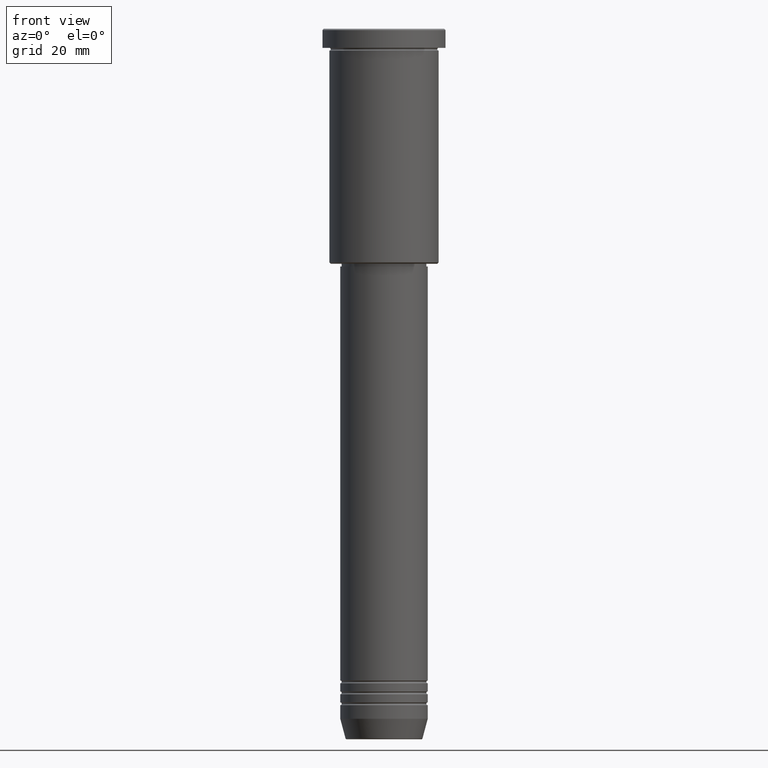
[diagram: clean part render]
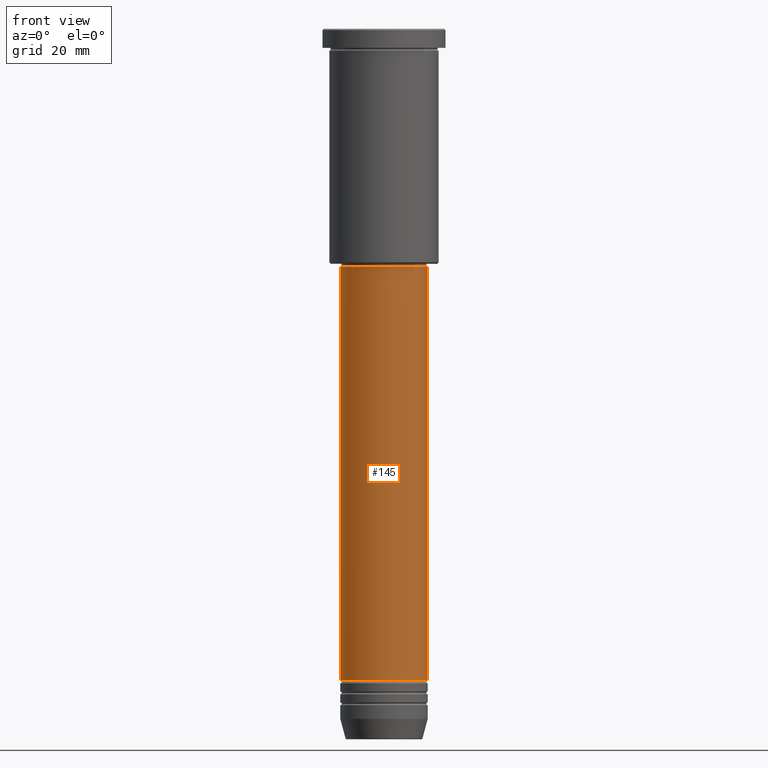
[diagram: same view with one face highlighted and labeled with its STEP entity id]
A machine part, front view. The second image highlights one B-rep face of the part: STEP entity #145.
In plain terms, the highlighted cylindrical surface (partial cylindrical patch) has radius 16 mm, axis along (-0, -0, 1).
Its self-contained STEP definition (entity closure, byte-faithful):
#52 = CIRCLE ( 'NONE', #85, 16.00000000000000000 ) ;
#85 = AXIS2_PLACEMENT_3D ( 'NONE', #1047, #1070, #531 ) ;
#86 = ORIENTED_EDGE ( 'NONE', *, *, #799, .T. ) ;
#145 = ADVANCED_FACE ( 'NONE', ( #285 ), #668, .T. ) ;
#197 = VERTEX_POINT ( 'NONE', #579 ) ;
#240 = VERTEX_POINT ( 'NONE', #299 ) ;
#242 = CIRCLE ( 'NONE', #481, 16.00000000000000000 ) ;
#248 = DIRECTION ( 'NONE',  ( 1.000000000000000000, 0.000000000000000000, 0.000000000000000000 ) ) ;
#269 = CARTESIAN_POINT ( 'NONE',  ( 0.000000000000000000, 0.000000000000000000, 0.000000000000000000 ) ) ;
#285 = FACE_OUTER_BOUND ( 'NONE', #1035, .T. ) ;
#299 = CARTESIAN_POINT ( 'NONE',  ( -16.00000000000000000, 1.959434878635765131E-15, -87.00000000000002842 ) ) ;
#343 = DIRECTION ( 'NONE',  ( -0.000000000000000000, -0.000000000000000000, 1.000000000000000000 ) ) ;
#428 = CARTESIAN_POINT ( 'NONE',  ( 0.000000000000000000, 0.000000000000000000, -238.5000000000000000 ) ) ;
#439 = ORIENTED_EDGE ( 'NONE', *, *, #979, .F. ) ;
#458 = AXIS2_PLACEMENT_3D ( 'NONE', #269, #662, #757 ) ;
#474 = CARTESIAN_POINT ( 'NONE',  ( -16.00000000000000000, 1.959434878635765131E-15, 0.000000000000000000 ) ) ;
#481 = AXIS2_PLACEMENT_3D ( 'NONE', #428, #343, #248 ) ;
#531 = DIRECTION ( 'NONE',  ( 1.000000000000000000, 0.000000000000000000, 0.000000000000000000 ) ) ;
#579 = CARTESIAN_POINT ( 'NONE',  ( 16.00000000000000000, 0.000000000000000000, -238.5000000000000000 ) ) ;
#603 = ORIENTED_EDGE ( 'NONE', *, *, #739, .F. ) ;
#662 = DIRECTION ( 'NONE',  ( -0.000000000000000000, -0.000000000000000000, 1.000000000000000000 ) ) ;
#668 = CYLINDRICAL_SURFACE ( 'NONE', #458, 16.00000000000000000 ) ;
#734 = LINE ( 'NONE', #906, #802 ) ;
#739 = EDGE_CURVE ( 'NONE', #240, #1159, #52, .T. ) ;
#741 = DIRECTION ( 'NONE',  ( -0.000000000000000000, -0.000000000000000000, 1.000000000000000000 ) ) ;
#752 = LINE ( 'NONE', #474, #818 ) ;
#757 = DIRECTION ( 'NONE',  ( 1.000000000000000000, 0.000000000000000000, 0.000000000000000000 ) ) ;
#760 = EDGE_CURVE ( 'NONE', #762, #197, #242, .T. ) ;
#762 = VERTEX_POINT ( 'NONE', #975 ) ;
#799 = EDGE_CURVE ( 'NONE', #197, #1159, #734, .T. ) ;
#802 = VECTOR ( 'NONE', #741, 1000.000000000000000 ) ;
#818 = VECTOR ( 'NONE', #1104, 1000.000000000000000 ) ;
#906 = CARTESIAN_POINT ( 'NONE',  ( 16.00000000000000000, 0.000000000000000000, 0.000000000000000000 ) ) ;
#975 = CARTESIAN_POINT ( 'NONE',  ( -16.00000000000000000, 1.959434878635765131E-15, -238.5000000000000000 ) ) ;
#979 = EDGE_CURVE ( 'NONE', #762, #240, #752, .T. ) ;
#1035 = EDGE_LOOP ( 'NONE', ( #439, #1049, #86, #603 ) ) ;
#1047 = CARTESIAN_POINT ( 'NONE',  ( 0.000000000000000000, 0.000000000000000000, -87.00000000000002842 ) ) ;
#1049 = ORIENTED_EDGE ( 'NONE', *, *, #760, .T. ) ;
#1070 = DIRECTION ( 'NONE',  ( -0.000000000000000000, -0.000000000000000000, 1.000000000000000000 ) ) ;
#1104 = DIRECTION ( 'NONE',  ( -0.000000000000000000, -0.000000000000000000, 1.000000000000000000 ) ) ;
#1147 = CARTESIAN_POINT ( 'NONE',  ( 16.00000000000000000, 0.000000000000000000, -87.00000000000002842 ) ) ;
#1159 = VERTEX_POINT ( 'NONE', #1147 ) ;